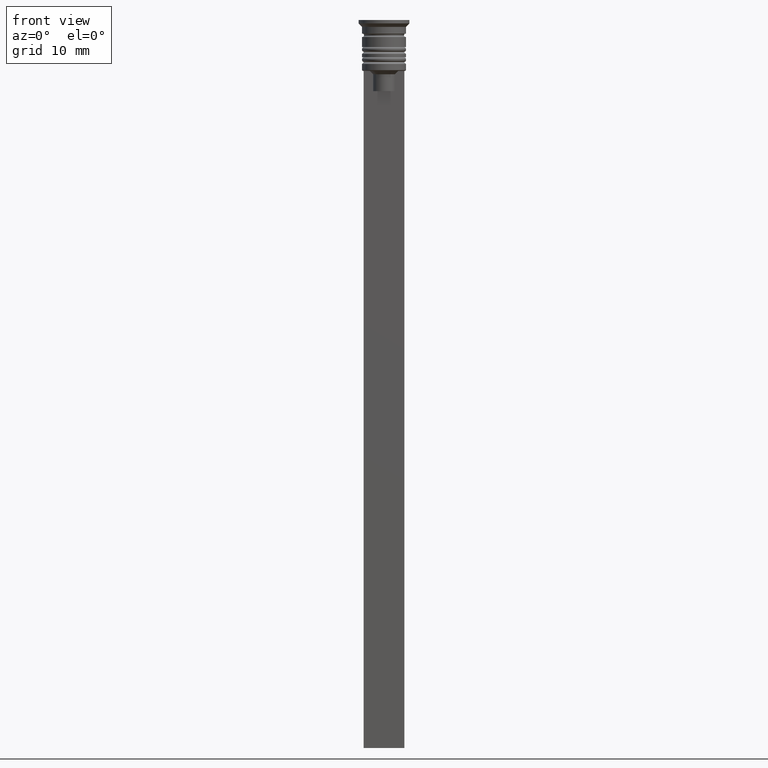
[diagram: clean part render]
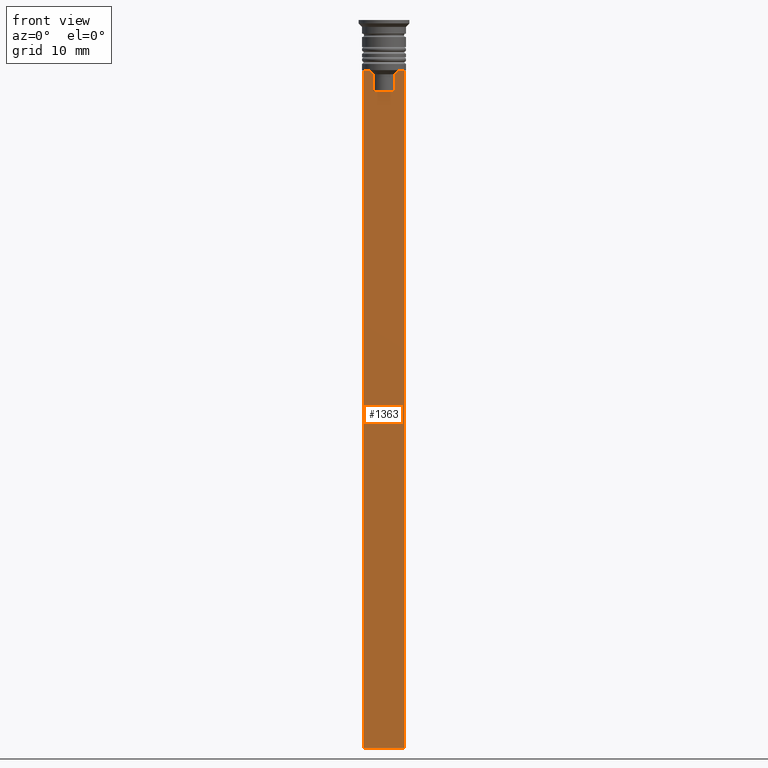
[diagram: same view with one face highlighted and labeled with its STEP entity id]
A machine part, front view. The second image highlights one B-rep face of the part: STEP entity #1363.
In plain terms, the highlighted planar face has unit normal (0, -1, -0).
Its self-contained STEP definition (entity closure, byte-faithful):
#37 = EDGE_CURVE ( 'NONE', #1570, #1114, #119, .T. ) ;
#61 = LINE ( 'NONE', #737, #1228 ) ;
#69 = EDGE_CURVE ( 'NONE', #1264, #596, #971, .T. ) ;
#95 = LINE ( 'NONE', #1785, #1965 ) ;
#97 = CARTESIAN_POINT ( 'NONE',  ( -3.000000000000004441, -0.3500000000000000333, -107.5000000000000000 ) ) ;
#98 = EDGE_CURVE ( 'NONE', #728, #1235, #981, .T. ) ;
#119 = LINE ( 'NONE', #1807, #1368 ) ;
#123 = DIRECTION ( 'NONE',  ( 1.000000000000000000, 0.000000000000000000, 0.000000000000000000 ) ) ;
#154 = CARTESIAN_POINT ( 'NONE',  ( -1.612451549659713601, -0.3500000000000000333, -8.000000000000000000 ) ) ;
#164 = FACE_OUTER_BOUND ( 'NONE', #663, .T. ) ;
#240 = ORIENTED_EDGE ( 'NONE', *, *, #287, .F. ) ;
#287 = EDGE_CURVE ( 'NONE', #728, #603, #1164, .T. ) ;
#292 = CARTESIAN_POINT ( 'NONE',  ( -1.782527878033862478, -0.3500000000000000333, -7.833794036819864637 ) ) ;
#309 = CARTESIAN_POINT ( 'NONE',  ( 2.121320343559647270, -0.3500000000000000333, -7.500000000000000000 ) ) ;
#310 = ORIENTED_EDGE ( 'NONE', *, *, #2163, .F. ) ;
#338 = DIRECTION ( 'NONE',  ( 0.000000000000000000, 0.000000000000000000, -1.000000000000000000 ) ) ;
#353 = EDGE_CURVE ( 'NONE', #603, #1264, #453, .T. ) ;
#403 = ORIENTED_EDGE ( 'NONE', *, *, #69, .F. ) ;
#433 = EDGE_CURVE ( 'NONE', #596, #1570, #727, .T. ) ;
#453 = B_SPLINE_CURVE_WITH_KNOTS ( 'NONE', 3,
 ( #980, #1656, #292, #154 ),
 .UNSPECIFIED., .F., .F.,
 ( 4, 4 ),
 ( 0.003684653461239337929, 0.004398058763641257696 ),
 .UNSPECIFIED. ) ;
#469 = DIRECTION ( 'NONE',  ( -0.000000000000000000, -0.000000000000000000, 1.000000000000000000 ) ) ;
#534 = CARTESIAN_POINT ( 'NONE',  ( 0.000000000000000000, -0.3500000000000000333, -10.49999999999999822 ) ) ;
#543 = EDGE_CURVE ( 'NONE', #791, #822, #95, .T. ) ;
#550 = DIRECTION ( 'NONE',  ( 1.000000000000000000, 0.000000000000000000, 0.000000000000000000 ) ) ;
#577 = ORIENTED_EDGE ( 'NONE', *, *, #98, .T. ) ;
#579 = DIRECTION ( 'NONE',  ( -1.000000000000000000, 0.000000000000000000, 0.000000000000000000 ) ) ;
#596 = VERTEX_POINT ( 'NONE', #1015 ) ;
#603 = VERTEX_POINT ( 'NONE', #1834 ) ;
#611 = CARTESIAN_POINT ( 'NONE',  ( 2.121320343559647270, -0.3500000000000000333, -7.500000000000000000 ) ) ;
#663 = EDGE_LOOP ( 'NONE', ( #1527, #240, #577, #894, #1518, #310, #848, #1892, #757, #403 ) ) ;
#727 = LINE ( 'NONE', #534, #2180 ) ;
#728 = VERTEX_POINT ( 'NONE', #1154 ) ;
#737 = CARTESIAN_POINT ( 'NONE',  ( 2.999999999999995559, -0.3500000000000000333, -107.5000000000000000 ) ) ;
#757 = ORIENTED_EDGE ( 'NONE', *, *, #433, .F. ) ;
#787 = CARTESIAN_POINT ( 'NONE',  ( -1.612451549659713601, -0.3500000000000000333, 0.000000000000000000 ) ) ;
#791 = VERTEX_POINT ( 'NONE', #940 ) ;
#821 = DIRECTION ( 'NONE',  ( 0.000000000000000000, 0.000000000000000000, -1.000000000000000000 ) ) ;
#822 = VERTEX_POINT ( 'NONE', #1334 ) ;
#830 = B_SPLINE_CURVE_WITH_KNOTS ( 'NONE', 3,
 ( #1815, #2016, #1999, #309 ),
 .UNSPECIFIED., .F., .F.,
 ( 4, 4 ),
 ( 0.008600796474521228696, 0.009317962624906526645 ),
 .UNSPECIFIED. ) ;
#836 = DIRECTION ( 'NONE',  ( 0.000000000000000000, -1.000000000000000000, -0.000000000000000000 ) ) ;
#848 = ORIENTED_EDGE ( 'NONE', *, *, #1413, .F. ) ;
#894 = ORIENTED_EDGE ( 'NONE', *, *, #950, .F. ) ;
#940 = CARTESIAN_POINT ( 'NONE',  ( 2.999999999999995559, -0.3500000000000000333, -7.500000000000000000 ) ) ;
#950 = EDGE_CURVE ( 'NONE', #822, #1235, #61, .T. ) ;
#971 = LINE ( 'NONE', #787, #1260 ) ;
#980 = CARTESIAN_POINT ( 'NONE',  ( -2.121320343559647270, -0.3500000000000000333, -7.500000000000000000 ) ) ;
#981 = LINE ( 'NONE', #1657, #1121 ) ;
#997 = DIRECTION ( 'NONE',  ( 1.000000000000000000, 0.000000000000000000, 0.000000000000000000 ) ) ;
#1015 = CARTESIAN_POINT ( 'NONE',  ( -1.612451549659713601, -0.3500000000000000333, -10.49999999999999822 ) ) ;
#1114 = VERTEX_POINT ( 'NONE', #2067 ) ;
#1121 = VECTOR ( 'NONE', #821, 1000.000000000000000 ) ;
#1136 = LINE ( 'NONE', #1501, #1347 ) ;
#1154 = CARTESIAN_POINT ( 'NONE',  ( -3.000000000000004441, -0.3500000000000000333, -7.500000000000000000 ) ) ;
#1164 = LINE ( 'NONE', #1811, #1823 ) ;
#1228 = VECTOR ( 'NONE', #579, 1000.000000000000000 ) ;
#1235 = VERTEX_POINT ( 'NONE', #97 ) ;
#1260 = VECTOR ( 'NONE', #2141, 1000.000000000000000 ) ;
#1264 = VERTEX_POINT ( 'NONE', #1947 ) ;
#1334 = CARTESIAN_POINT ( 'NONE',  ( 2.999999999999995559, -0.3500000000000000333, -107.5000000000000000 ) ) ;
#1347 = VECTOR ( 'NONE', #997, 1000.000000000000000 ) ;
#1363 = ADVANCED_FACE ( 'NONE', ( #164 ), #2026, .T. ) ;
#1368 = VECTOR ( 'NONE', #469, 1000.000000000000000 ) ;
#1413 = EDGE_CURVE ( 'NONE', #1114, #2045, #830, .T. ) ;
#1439 = DIRECTION ( 'NONE',  ( 0.000000000000000000, 0.000000000000000000, -1.000000000000000000 ) ) ;
#1501 = CARTESIAN_POINT ( 'NONE',  ( 2.999999999999995559, -0.3500000000000000333, -7.500000000000000000 ) ) ;
#1518 = ORIENTED_EDGE ( 'NONE', *, *, #543, .F. ) ;
#1527 = ORIENTED_EDGE ( 'NONE', *, *, #353, .F. ) ;
#1570 = VERTEX_POINT ( 'NONE', #2110 ) ;
#1656 = CARTESIAN_POINT ( 'NONE',  ( -1.952043732028444500, -0.3500000000000000333, -7.667018567316270961 ) ) ;
#1657 = CARTESIAN_POINT ( 'NONE',  ( -3.000000000000004441, -0.3500000000000000333, -1.459304675784417915 ) ) ;
#1785 = CARTESIAN_POINT ( 'NONE',  ( 2.999999999999995559, -0.3500000000000000333, -1.459304675784417915 ) ) ;
#1794 = AXIS2_PLACEMENT_3D ( 'NONE', #2010, #836, #338 ) ;
#1807 = CARTESIAN_POINT ( 'NONE',  ( 1.612451549659713601, -0.3500000000000000333, 0.000000000000000000 ) ) ;
#1811 = CARTESIAN_POINT ( 'NONE',  ( 2.999999999999995559, -0.3500000000000000333, -7.500000000000000000 ) ) ;
#1815 = CARTESIAN_POINT ( 'NONE',  ( 1.612451549659713601, -0.3500000000000000333, -8.000000000000000000 ) ) ;
#1823 = VECTOR ( 'NONE', #123, 1000.000000000000000 ) ;
#1834 = CARTESIAN_POINT ( 'NONE',  ( -2.121320343559647270, -0.3500000000000000333, -7.500000000000000000 ) ) ;
#1892 = ORIENTED_EDGE ( 'NONE', *, *, #37, .F. ) ;
#1947 = CARTESIAN_POINT ( 'NONE',  ( -1.612451549659713601, -0.3500000000000000333, -8.000000000000000000 ) ) ;
#1965 = VECTOR ( 'NONE', #1439, 1000.000000000000000 ) ;
#1999 = CARTESIAN_POINT ( 'NONE',  ( 1.952040775369266346, -0.3500000000000000333, -7.667021484535463394 ) ) ;
#2010 = CARTESIAN_POINT ( 'NONE',  ( 2.999999999999995559, -0.3500000000000000333, -1.459304675784417915 ) ) ;
#2016 = CARTESIAN_POINT ( 'NONE',  ( 1.782523989086206795, -0.3500000000000000333, -7.833797837268088315 ) ) ;
#2026 = PLANE ( 'NONE',  #1794 ) ;
#2045 = VERTEX_POINT ( 'NONE', #611 ) ;
#2067 = CARTESIAN_POINT ( 'NONE',  ( 1.612451549659713601, -0.3500000000000000333, -8.000000000000000000 ) ) ;
#2110 = CARTESIAN_POINT ( 'NONE',  ( 1.612451549659713601, -0.3500000000000000333, -10.49999999999999822 ) ) ;
#2141 = DIRECTION ( 'NONE',  ( 0.000000000000000000, 0.000000000000000000, -1.000000000000000000 ) ) ;
#2163 = EDGE_CURVE ( 'NONE', #2045, #791, #1136, .T. ) ;
#2180 = VECTOR ( 'NONE', #550, 1000.000000000000000 ) ;